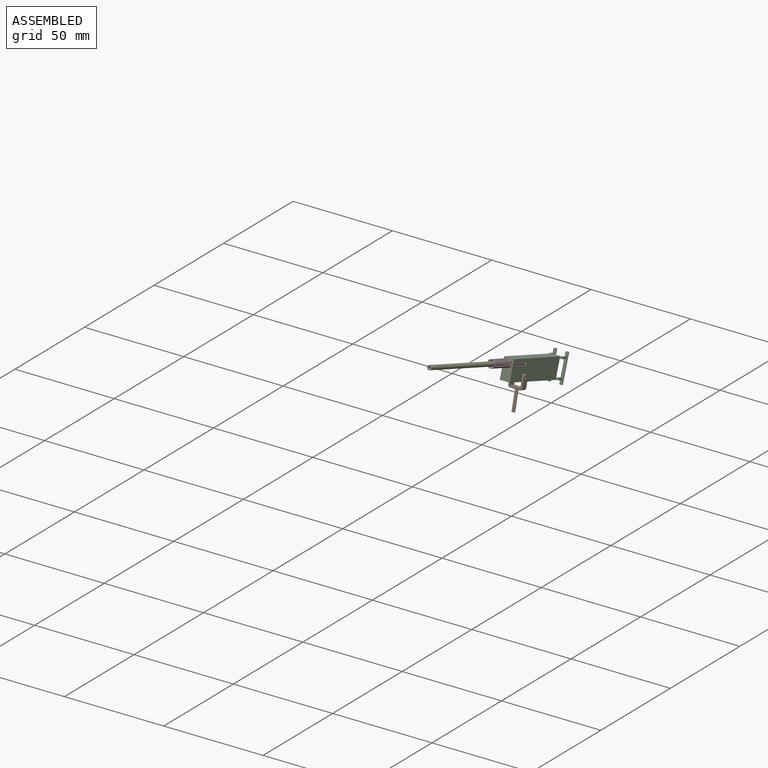
[diagram: assembled view]
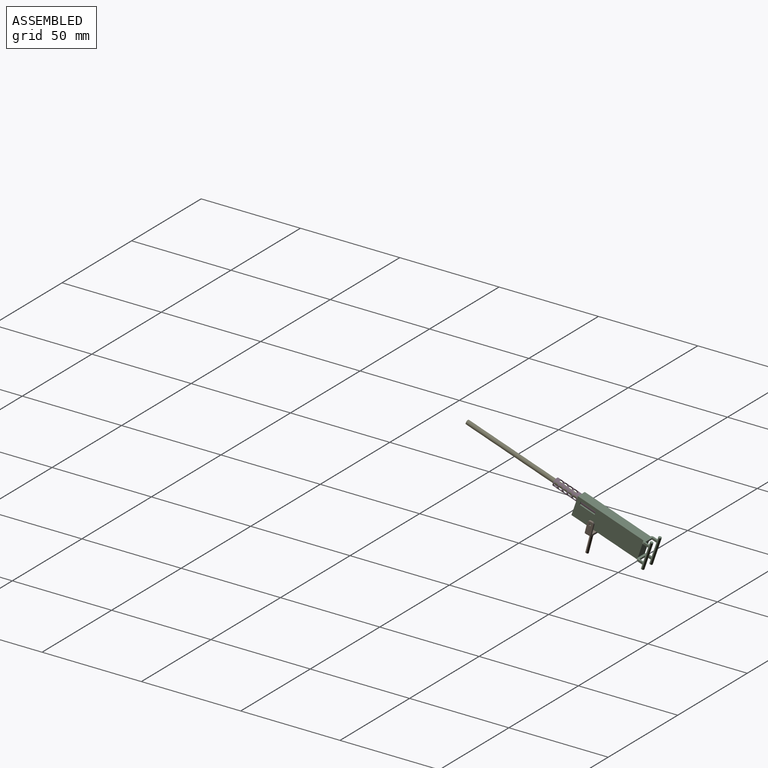
[diagram: assembled view, second angle]
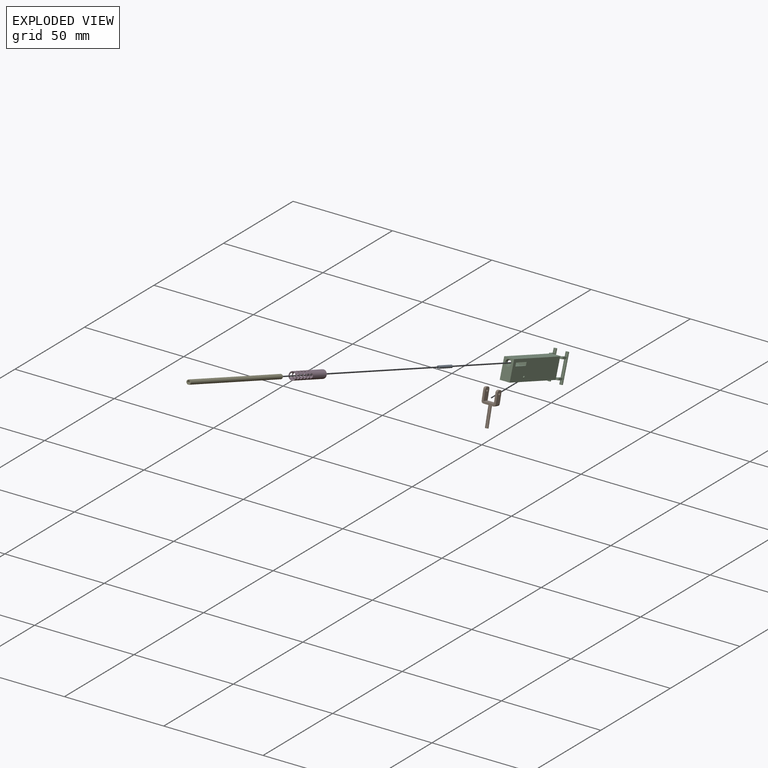
[diagram: exploded view]
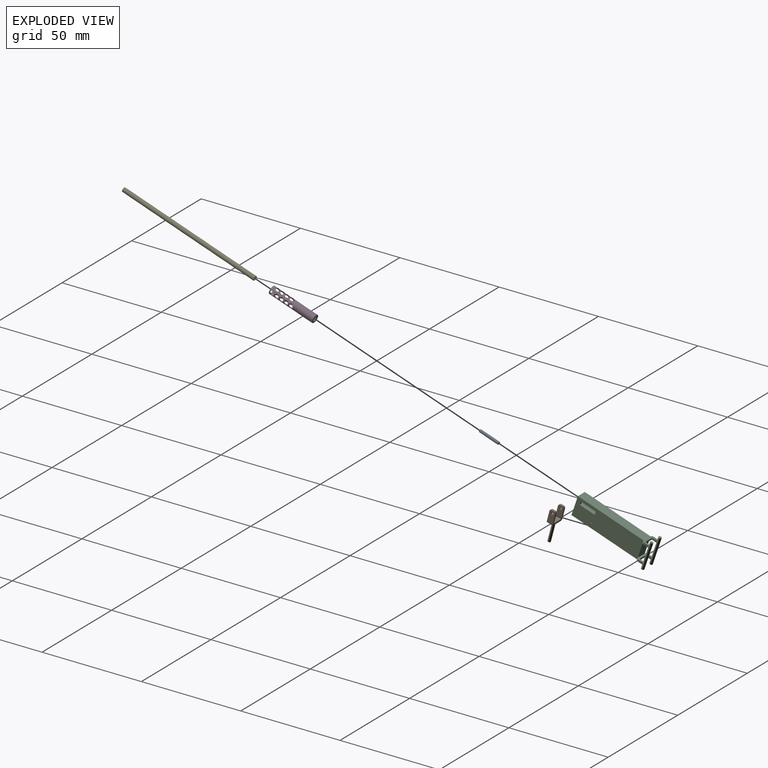
[diagram: exploded view, second angle]
ASSEMBLY  parts=5 mates=4
PART A: 3 faces, bbox 1.4x10x1.4 mm
  f0: cylinder r=0.7mm len=10mm, axis (0,1,0), area 44mm2, adj f1,f2
  f1: plane 1.4x1.4mm, normal (0,-1,0), area 1.5mm2, adj f0
  f2: plane 1.4x1.4mm, normal (0,1,0), area 1.5mm2, adj f0
PART B: 20 faces, bbox 7.1x3x17 mm
  f0: plane 6x3mm, normal (-1,0,0), area 16.6mm2, adj f1,f7,f8,f9,f10,f17,f19
  f1: plane 5.1x3mm, normal (0,0,1), area 15.3mm2, adj f0,f2,f8,f9
  f2: plane 6x3mm, normal (1,0,0), area 16.6mm2, adj f1,f3,f8,f9,f11,f16,f18
  f3: plane 1x1mm, normal (0,0,1), area 1mm2, adj f2,f4,f16,f18
  f4: plane 6x3mm, normal (-1,0,0), area 16.6mm2, adj f3,f8,f9,f11,f14,f16,f18
  f5: plane 5.1x3mm, normal (0,0,-1), area 13.5mm2, adj f8,f9,f12,f14,f15
  f6: plane 6x3mm, normal (1,0,0), area 16.6mm2, adj f7,f8,f9,f10,f15,f17,f19
  f7: plane 1x1mm, normal (0,0,1), area 1mm2, adj f0,f6,f17,f19
  f8: plane 7.1x6mm, normal (0,-1,0), area 16.7mm2, adj f0,f1,f2,f4,f5,f6,f14,f15
  f9: plane 7.1x6mm, normal (0,1,0), area 16.7mm2, adj f0,f1,f2,f4,f5,f6,f14,f15
  f10: cylinder r=0.55mm len=1.1mm, axis (1,0,0), area 3.5mm2, adj f0,f6
  f11: cylinder r=0.55mm len=1.1mm, axis (1,0,0), area 3.5mm2, adj f2,f4
  f12: cylinder r=0.75mm len=10mm, axis (0,0,1), area 47.1mm2, adj f5,f13
  f13: plane 1.5x1.5mm, normal (0,0,-1), area 1.8mm2, adj f12
  f14: cylinder r=1mm len=3mm, axis (0,1,0), area 4.7mm2, adj f4,f5,f8,f9
  f15: cylinder r=1mm len=3mm, axis (0,1,0), area 4.7mm2, adj f5,f6,f8,f9
  f16: cylinder r=1mm len=1mm, axis (-1,0,0), area 1.6mm2, adj f2,f3,f4,f9
  f17: cylinder r=1mm len=1mm, axis (-1,0,0), area 1.6mm2, adj f0,f6,f7,f9
  f18: cylinder r=1mm len=1mm, axis (1,0,0), area 1.6mm2, adj f2,f3,f4,f8
  f19: cylinder r=1mm len=1mm, axis (1,0,0), area 1.6mm2, adj f0,f6,f7,f8
PART C: 53 faces, bbox 10.3x39.8x14 mm
  f0: plane 7x1mm, normal (0,1,0), area 5.2mm2, adj f5,f26,f32,f34,f36,f37,f45,f46
  f1: plane 5.05x1mm, normal (0,1,0), area 5mm2, adj f6,f25,f29,f30
  f2: plane 8x5mm, normal (0,1,0), area 40mm2, adj f3,f4,f25,f26
  f3: plane 35x10mm, normal (-1,0,0), area 290.6mm2, adj f2,f5,f6,f7,f9,f10,f11,f12
  f4: plane 35x10mm, normal (1,0,0), area 335.6mm2, adj f2,f5,f6,f7,f9,f17,f18,f19
  f5: plane 36x7mm, normal (0,0,-1), area 181.6mm2, adj f0,f3,f4,f7,f45,f46
  f6: plane 38.45x7mm, normal (0,0,1), area 186.1mm2, adj f1,f3,f4,f7,f23,f24,f29,f30
  f7: plane 10x5mm, normal (0,-1,0), area 42.9mm2, adj f3,f4,f5,f6,f8
  f8: cylinder r=1.5mm len=10mm, axis (0,-1,0), area 65.1mm2, adj f7,f9,f17,f18,f19,f20,f21,f22
  f9: plane 5x3mm, normal (0,-1,0), area 10.8mm2, adj f3,f4,f8,f17,f18,f21,f22
  f10: plane 15x1mm, normal (0,0,-1), area 15mm2, adj f3,f11,f14,f15
  f11: plane 3x1mm, normal (0,-1,0), area 3mm2, adj f3,f10,f12,f15
  f12: plane 15x1mm, normal (0,0,1), area 15mm2, adj f3,f11,f14,f15
  f13: cylinder r=0.75mm len=5mm, axis (-1,0,0), area 23.6mm2, adj f15,f16
  f14: plane 3x1mm, normal (0,1,0), area 3mm2, adj f3,f10,f12,f15
  f15: plane 15x3mm, normal (-1,0,0), area 43.2mm2, adj f10,f11,f12,f13,f14
  f16: plane 1.5x1.5mm, normal (-1,0,0), area 1.8mm2, adj f13
  f17: plane 8x1.38mm, normal (0,0,1), area 11.1mm2, adj f4,f8,f9,f19
  f18: plane 8x1.17mm, normal (0,0,-1), area 9.4mm2, adj f4,f8,f9,f19
  f19: plane 1.7x1.38mm, normal (0,1,0), area 1.9mm2, adj f4,f8,f17,f18
  f20: plane 1.7x1.38mm, normal (0,1,0), area 1.9mm2, adj f3,f8,f21,f22
  f21: plane 8x1.17mm, normal (0,0,-1), area 9.4mm2, adj f3,f8,f9,f20
  f22: plane 8x1.38mm, normal (0,0,1), area 11.1mm2, adj f3,f8,f9,f20
  f23: plane 2.45x1mm, normal (-1,0,0), area 2.4mm2, adj f6,f25,f41,f48
  f24: plane 2.41x1mm, normal (1,0,0), area 2.4mm2, adj f6,f25,f39,f47
  f25: plane 7x3.45mm, normal (0,0,-1), area 11.1mm2, adj f1,f2,f23,f24,f29,f30,f39,f41
  f26: plane 7x1mm, normal (0,0,1), area 6.6mm2, adj f0,f2,f31,f35,f45,f46
  f27: plane 2.41x1.03mm, normal (1,0,0), area 2.5mm2, adj f35,f36,f38,f39,f46
  f28: plane 2.45x1.03mm, normal (-1,0,0), area 2.5mm2, adj f31,f32,f33,f41,f45
  f29: plane 2.41x1mm, normal (-1,0,0), area 2.4mm2, adj f1,f6,f25,f39
  f30: plane 2.45x1mm, normal (1,0,0), area 2.4mm2, adj f1,f6,f25,f41
  f31: plane 0.93x0.05mm, normal (0,-1,0), area 0mm2, adj f26,f28,f33,f34
  f32: plane 2.45x0.93mm, normal (0,0,-1), area 2.2mm2, adj f0,f28,f34,f41
  f33: plane 2.45x0.93mm, normal (0,0,1), area 2.2mm2, adj f28,f31,f34,f41
  f34: plane 2.38x1.03mm, normal (1,0,0), area 2.4mm2, adj f0,f31,f32,f33,f41
  f35: plane 0.93x0.05mm, normal (0,-1,0), area 0mm2, adj f26,f27,f37,f38
  f36: plane 2.41x0.93mm, normal (0,0,-1), area 2.1mm2, adj f0,f27,f37,f39
  f37: plane 2.41x1.03mm, normal (-1,0,0), area 2.5mm2, adj f0,f35,f36,f38,f39
  f38: plane 2.41x0.93mm, normal (0,0,1), area 2.1mm2, adj f27,f35,f37,f39
  f39: cylinder r=0.75mm len=14mm, axis (0,0,1), area 63.9mm2, adj f6,f24,f25,f27,f29,f36,f37,f38
  f40: plane 1.5x1.5mm, normal (0,0,-1), area 1.8mm2, adj f39
  f41: cylinder r=0.75mm len=14mm, axis (0,0,1), area 63.8mm2, adj f6,f23,f25,f28,f30,f32,f33,f34
  f42: plane 1.5x1.5mm, normal (0,0,-1), area 1.8mm2, adj f41
  f43: plane 1.5x1.5mm, normal (0,0,1), area 1.8mm2, adj f39
  f44: plane 1.5x1.5mm, normal (0,0,1), area 1.8mm2, adj f41
  f45: cylinder r=1mm len=1mm, axis (0,0,1), area 1.6mm2, adj f0,f3,f5,f26,f28
  f46: cylinder r=1mm len=1mm, axis (0,0,-1), area 1.6mm2, adj f0,f4,f5,f26,f27
  f47: cylinder r=1mm len=1mm, axis (0,0,-1), area 1.6mm2, adj f4,f6,f24,f25
  f48: cylinder r=1mm len=1mm, axis (0,0,1), area 1.6mm2, adj f3,f6,f23,f25
  f49: cylinder r=0.5mm len=1mm, axis (-1,0,0), area 1.6mm2, adj f4,f50
  f50: plane 1x1mm, normal (1,0,0), area 0.8mm2, adj f49
  f51: cylinder r=0.5mm len=1mm, axis (1,0,0), area 1.6mm2, adj f3,f52
  f52: plane 1x1mm, normal (-1,0,0), area 0.8mm2, adj f51
PART D: 24 faces, bbox 4x23x4 mm
  f0: cylinder r=1.6mm len=13mm, axis (0,1,0), area 57.3mm2, adj f3,f5,f6,f7,f8,f9,f10,f11
  f1: cylinder r=2mm len=23mm, axis (0,1,0), area 217.7mm2, adj f4,f5,f6,f7,f8,f9,f10,f11
  f2: cylinder r=1.1mm len=10mm, axis (0,1,0), area 69.1mm2, adj f3,f4
  f3: plane 3.2x3.2mm, normal (0,-1,0), area 4.2mm2, adj f0,f2
  f4: plane 4x4mm, normal (0,1,0), area 8.8mm2, adj f1,f2
  f5: plane 4x4mm, normal (0,-1,0), area 4.5mm2, adj f0,f1
  f6: cylinder r=1.1mm len=2.2mm, axis (1,0,0), area 3.1mm2, adj f0,f1
  f7: cylinder r=1.1mm len=2.2mm, axis (1,0,0), area 3.1mm2, adj f0,f1
  f8: cylinder r=1.1mm len=2.2mm, axis (1,0,0), area 3.1mm2, adj f0,f1
  f9: cylinder r=1.1mm len=2.2mm, axis (1,0,0), area 3.1mm2, adj f0,f1
  f10: cylinder r=1.1mm len=2.2mm, axis (1,0,0), area 3.1mm2, adj f0,f1
  f11: cylinder r=1.1mm len=2.2mm, axis (1,0,0), area 3.1mm2, adj f0,f1
  f12: cylinder r=1.1mm len=2.2mm, axis (1,0,0), area 3.1mm2, adj f0,f1
  f13: cylinder r=1.1mm len=2.2mm, axis (1,0,0), area 3.1mm2, adj f0,f1
  f14: cylinder r=1.1mm len=2.2mm, axis (1,0,0), area 3.1mm2, adj f0,f1
  f15: cylinder r=1.1mm len=2.2mm, axis (1,0,0), area 3.1mm2, adj f0,f1
  f16: cylinder r=1.1mm len=2.2mm, axis (0,0,1), area 3.1mm2, adj f0,f1
  f17: cylinder r=1.1mm len=2.2mm, axis (0,0,1), area 3.1mm2, adj f0,f1
  f18: cylinder r=1.1mm len=2.2mm, axis (0,0,1), area 3.1mm2, adj f0,f1
  f19: cylinder r=1.1mm len=2.2mm, axis (0,0,1), area 3.1mm2, adj f0,f1
  f20: cylinder r=1.1mm len=2.2mm, axis (0,0,1), area 3.1mm2, adj f0,f1
  f21: cylinder r=1.1mm len=2.2mm, axis (0,0,1), area 3.1mm2, adj f0,f1
  f22: cylinder r=1.1mm len=2.2mm, axis (0,0,1), area 3.1mm2, adj f0,f1
  f23: cylinder r=1.1mm len=2.2mm, axis (0,0,1), area 3.1mm2, adj f0,f1
PART E: 4 faces, bbox 2.2x70x2.2 mm
  f0: cylinder r=0.7mm len=70mm, axis (0,1,0), area 307.9mm2, adj f2,f3
  f1: cylinder r=1.1mm len=70mm, axis (0,1,0), area 483.8mm2, adj f2,f3
  f2: plane 2.2x2.2mm, normal (0,-1,0), area 2.3mm2, adj f0,f1
  f3: plane 2.2x2.2mm, normal (0,1,0), area 2.3mm2, adj f0,f1
PLACE A rot(axis=(-1,0,0),19deg) t=(-5.5,-13.62,0.26)mm
PLACE B rot(axis=(-1,0,0),14.8deg) t=(-5.45,-14.44,-7.06)mm fixed
PLACE C rot(axis=(-1,0,0),19deg) t=(-5.5,9.11,-10.52)mm
PLACE D rot(axis=(-1,0,0),19deg) t=(-5.5,-13.62,0.26)mm
PLACE E rot(axis=(-1,0,0),19deg) t=(-5.5,-13.62,0.26)mm
MATE fastened D.f2 <-> C.f8  axis (0,0.95,-0.33) through (-5.5,-13.62,0.26)mm
MATE revolute C.f51 <-> B.f10  axis (-1,0,0) through (-8,-15.51,-5.22)mm
MATE fastened A.f0 <-> D.f2  axis (0,0.95,-0.33) through (-5.5,-13.62,0.26)mm
MATE fastened E.f0 <-> C.f8  axis (0,0.95,-0.33) through (-5.5,-13.62,0.26)mm
